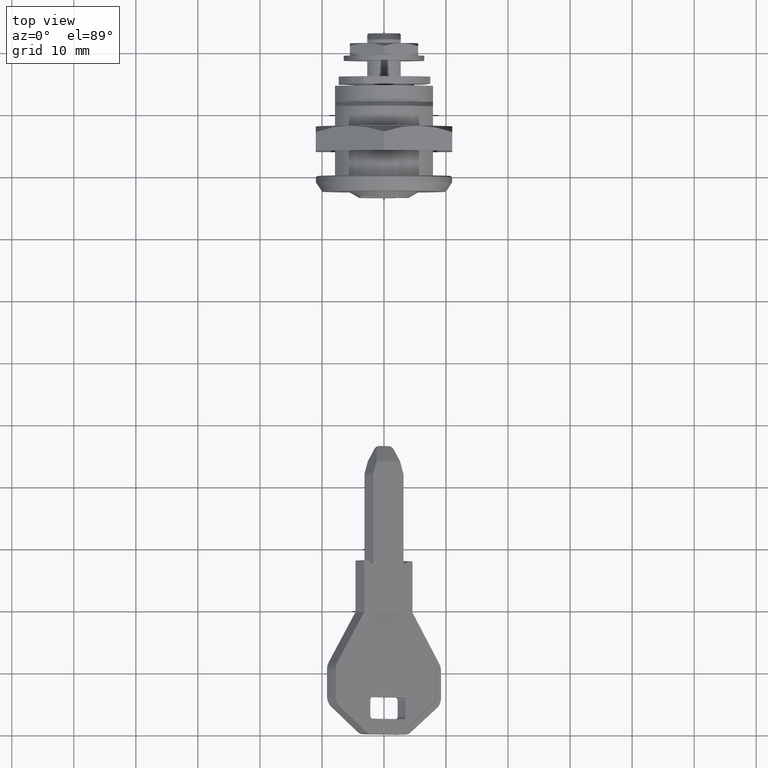
[diagram: clean part render]
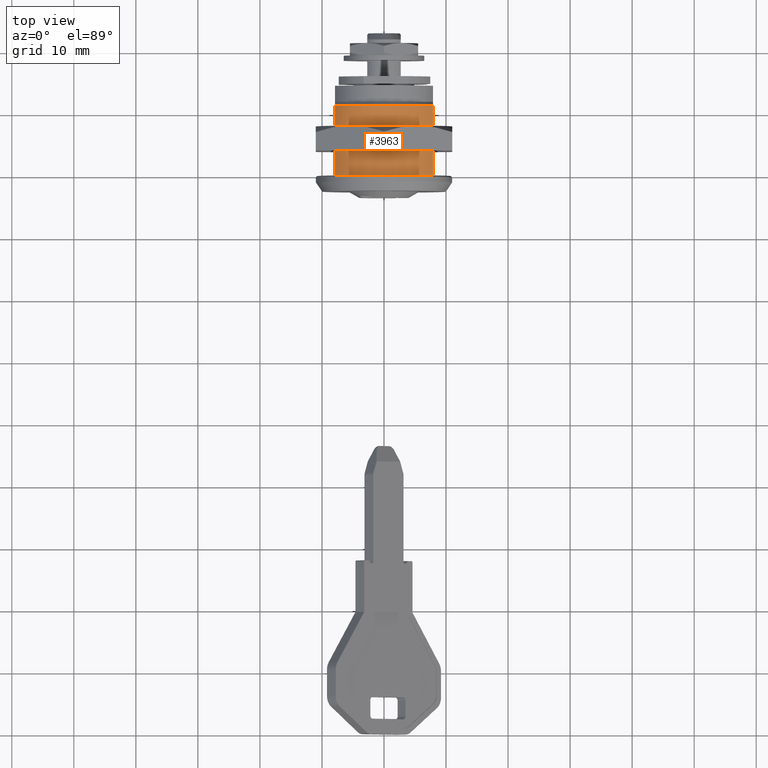
[diagram: same view with one face highlighted and labeled with its STEP entity id]
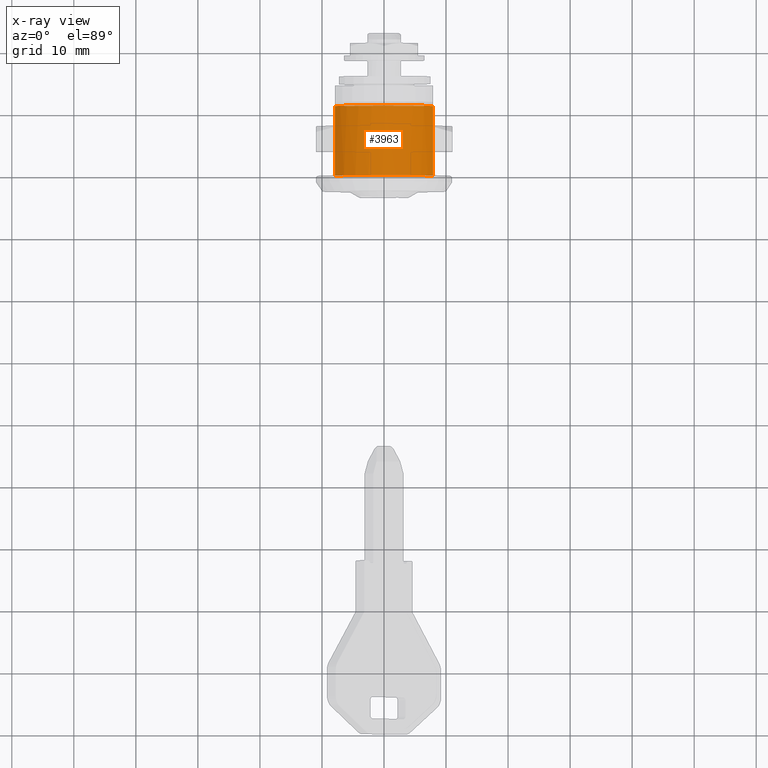
[diagram: x-ray of the same camera — body ghosted, the highlighted face saturated]
A machine part, top view. The second image highlights one B-rep face of the part: STEP entity #3963.
The next image is the same camera in x-ray: the body ghosted, the highlighted face saturated — about 0% of this face is hidden behind the body in this view.
In plain terms, the highlighted face is a freeform B-spline surface patch.
Its self-contained STEP definition (entity closure, byte-faithful):
#3574=CARTESIAN_POINT('',(-7.900000000000000,11.199999999999999,5.276362383349420));
#3575=VERTEX_POINT('',#3574);
#3585=CARTESIAN_POINT('',(7.900000000000001,11.199999999999999,5.276362383349269));
#3586=VERTEX_POINT('',#3585);
#3587=CARTESIAN_POINT('',(7.900000000000001,11.199999999999999,5.276362383349269));
#3588=CARTESIAN_POINT('',(7.522291308191630,11.199999999999990,5.842060548221500));
#3589=CARTESIAN_POINT('',(6.582007879988487,11.200000000000021,6.966785951006499));
#3590=CARTESIAN_POINT('',(4.820983164967286,11.199999999999919,8.290267137720528));
#3591=CARTESIAN_POINT('',(2.979119844611952,11.200000000000060,9.083088758609632));
#3592=CARTESIAN_POINT('',(1.122342517694205,11.199999999999990,9.488188539811885));
#3593=CARTESIAN_POINT('',(-0.538300422806334,11.199999999999980,9.539155112621520));
#3594=CARTESIAN_POINT('',(-2.368249730882075,11.200000000000040,9.256135471583228));
#3595=CARTESIAN_POINT('',(-4.120455847141092,11.199999999999930,8.641289001299310));
#3596=CARTESIAN_POINT('',(-5.742835667964417,11.200000000000120,7.641257898216162));
#3597=CARTESIAN_POINT('',(-6.998260726703009,11.199999999999781,6.485273864487825));
#3598=CARTESIAN_POINT('',(-7.630177547824468,11.200000000000340,5.680395256851289));
#3599=CARTESIAN_POINT('',(-7.900000000000000,11.199999999999999,5.276362383349420));
#3600=B_SPLINE_CURVE_WITH_KNOTS('',3,(#3587,#3588,#3589,#3590,#3591,#3592,#3593,#3594,#3595,#3596,#3597,#3598,#3599),.UNSPECIFIED.,.F.,.U.,(4,1,1,1,1,1,1,1,1,1,4),(0.000000069094966,2.040615110304110,4.372762253087608,6.559173267693764,8.016775196372622,10.057328350368721,11.514918918104090,13.555568821017919,15.596209432852310,17.199575123091730,18.657129072744350),.UNSPECIFIED.);
#3601=EDGE_CURVE('',#3586,#3575,#3600,.T.);
#3903=CARTESIAN_POINT('',(-7.900000000000000,4.837195E-016,5.276362383349420));
#3904=VERTEX_POINT('',#3903);
#3910=CARTESIAN_POINT('',(-7.900000000000000,11.199999999999999,5.276362383349420));
#3911=CARTESIAN_POINT('',(-7.900000000000000,4.837195E-016,5.276362383349420));
#3912=QUASI_UNIFORM_CURVE('',1,(#3910,#3911),.UNSPECIFIED.,.F.,.U.);
#3913=EDGE_CURVE('',#3575,#3904,#3912,.T.);
#3921=CARTESIAN_POINT('',(-8.077362036905457,11.480000000000000,5.000622213801008));
#3922=CARTESIAN_POINT('',(-8.077362036905457,-0.287000000000000,5.000622213801008));
#3923=CARTESIAN_POINT('',(0.412009869079120,11.480000000000000,18.713261845300064));
#3924=CARTESIAN_POINT('',(0.412009869079119,-0.287000000000001,18.713261845300064));
#3925=CARTESIAN_POINT('',(8.289625557818585,11.480000000000000,4.640270262768487));
#3926=CARTESIAN_POINT('',(8.289625557818585,-0.287000000000001,4.640270262768487));
#3934=(BOUNDED_SURFACE()B_SPLINE_SURFACE(1,2,((#3921,#3923,#3925),(#3922,#3924,#3926)),.UNSPECIFIED.,.F.,.F.,.U.)B_SPLINE_SURFACE_WITH_KNOTS((2,2),(3,3),(0.0,11.766999999999999),(0.0,21.718789319878439),.UNSPECIFIED.)GEOMETRIC_REPRESENTATION_ITEM()RATIONAL_B_SPLINE_SURFACE(((1.0,0.507538362960704,1.0),(1.0,0.507538362960704,1.0)))REPRESENTATION_ITEM('')SURFACE());
#3935=CARTESIAN_POINT('',(7.900000000000000,-4.837195E-016,5.276362383349269));
#3936=VERTEX_POINT('',#3935);
#3937=CARTESIAN_POINT('',(7.900000000000001,11.199999999999999,5.276362383349269));
#3938=CARTESIAN_POINT('',(7.900000000000000,-4.837195E-016,5.276362383349269));
#3939=QUASI_UNIFORM_CURVE('',1,(#3937,#3938),.UNSPECIFIED.,.F.,.U.);
#3940=EDGE_CURVE('',#3586,#3936,#3939,.T.);
#3941=ORIENTED_EDGE('',*,*,#3940,.F.);
#3942=ORIENTED_EDGE('',*,*,#3601,.T.);
#3943=ORIENTED_EDGE('',*,*,#3913,.T.);
#3944=CARTESIAN_POINT('',(-7.900000000000000,4.837195E-016,5.276362383349420));
#3945=CARTESIAN_POINT('',(-7.360699171225328,4.506979E-016,6.084766991756502));
#3946=CARTESIAN_POINT('',(-6.296734109939589,3.855510E-016,7.243387927044292));
#3947=CARTESIAN_POINT('',(-4.626649323645137,2.832912E-016,8.344671489536683));
#3948=CARTESIAN_POINT('',(-3.338132405540772,2.043949E-016,8.923013508731657));
#3949=CARTESIAN_POINT('',(-1.892812399084941,1.158975E-016,9.356831999140878));
#3950=CARTESIAN_POINT('',(-0.340880848270076,2.087224E-017,9.548238275043950));
#3951=CARTESIAN_POINT('',(1.410061450559740,-8.633851E-017,9.440610314721909));
#3952=CARTESIAN_POINT('',(2.835215082232026,-1.736011E-016,9.106710316397027));
#3953=CARTESIAN_POINT('',(4.279727455770456,-2.620491E-016,8.523752770539439));
#3954=CARTESIAN_POINT('',(5.495534920206644,-3.364933E-016,7.799915726313770));
#3955=CARTESIAN_POINT('',(6.801341691555504,-4.164483E-016,6.704265991479578));
#3956=CARTESIAN_POINT('',(7.522307067783276,-4.605933E-016,5.842067787185829));
#3957=CARTESIAN_POINT('',(7.900000000000000,-4.837195E-016,5.276362383349269));
#3958=B_SPLINE_CURVE_WITH_KNOTS('',3,(#3944,#3945,#3946,#3947,#3948,#3949,#3950,#3951,#3952,#3953,#3954,#3955,#3956,#3957),.UNSPECIFIED.,.F.,.U.,(4,1,1,1,1,1,1,1,1,1,1,4),(0.000000069101759,2.915168831027049,4.664282609847657,5.976129494688143,7.142216098944294,9.182816715187649,10.640359338502851,12.389484196672671,13.555568821019600,15.304687524654669,16.616535236942170,18.657129072744329),.UNSPECIFIED.);
#3959=EDGE_CURVE('',#3904,#3936,#3958,.T.);
#3960=ORIENTED_EDGE('',*,*,#3959,.T.);
#3961=EDGE_LOOP('',(#3941,#3942,#3943,#3960));
#3962=FACE_OUTER_BOUND('',#3961,.T.);
#3963=ADVANCED_FACE('',(#3962),#3934,.T.);